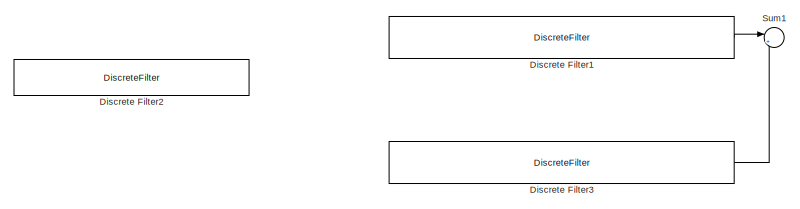
[diagram: root canvas - part 1/3, top right region]
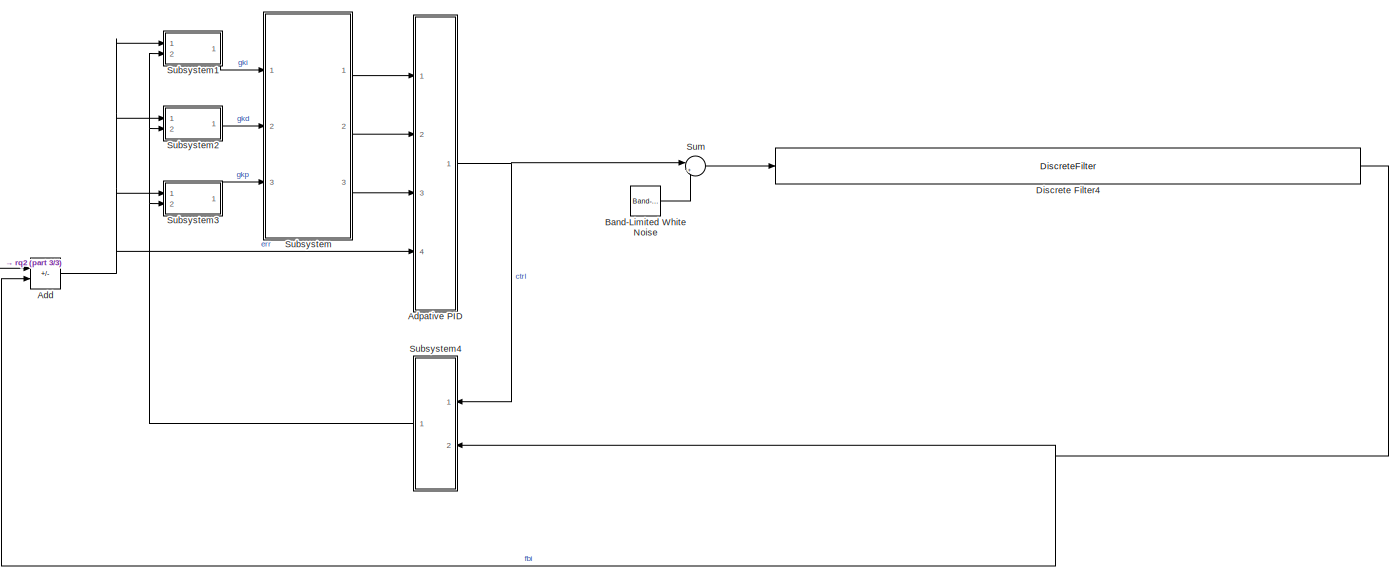
[diagram: root canvas - part 2/3, central region]
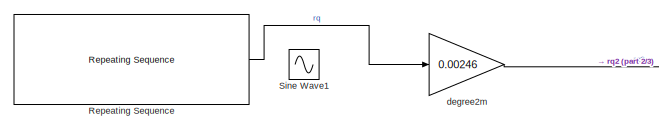
[diagram: root canvas - part 3/3, middle left region]
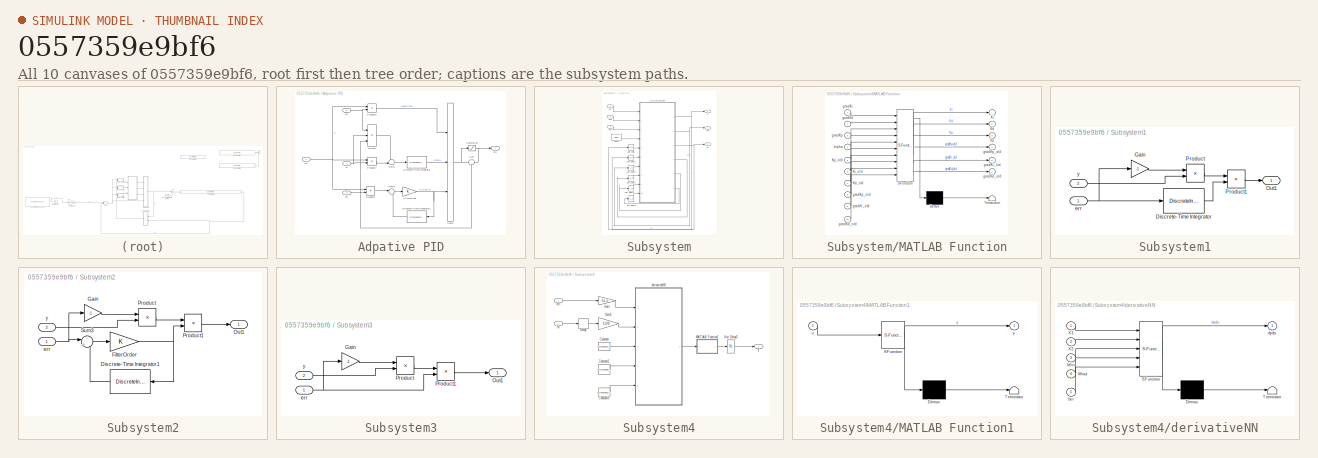
[diagram: thumbnail index - all 10 canvases of the model, root first then tree order]
MODEL slx_0557359e9bf6
KIND model
CONFIG AbsTol = auto
CONFIG EnableMultiTasking = off
CONFIG FixedStep = 1e-4
CONFIG MaxStep = auto
CONFIG MinStep = auto
CONFIG RelTol = 1e-3
CONFIG SampleTimeConstraint = Unconstrained
CONFIG Solver = ode8
CONFIG SolverName = ode8
CONFIG StartTime = 0.0
CONFIG StopTime = 100
BLOCK [Sum] Add
  IconShape = rectangular
  Inputs = +-
  Ports = [2, 1]
BLOCK [SubSystem] Adpative PID
  Ports = [4, 1]
  RequestExecContextInheritance = off
BLOCK [DiscreteIntegrator] Adpative PID/Discrete-Time Integrator
  ICPrevOutput = DiscIntNeverNeededParam
  ICPrevScaledInput = DiscIntNeverNeededParam
  InitialConditionSetting = Auto
  IntegratorMethod = Accumulation: Forward Euler
  Ports = [1, 1]
  SampleTime = -1
  gainval = 0.001
BLOCK [DiscreteIntegrator] Adpative PID/Discrete-Time Integrator1
  ICPrevOutput = DiscIntNeverNeededParam
  ICPrevScaledInput = DiscIntNeverNeededParam
  InitialConditionSetting = Auto
  IntegratorMethod = Accumulation: Forward Euler
  Ports = [1, 1]
  SampleTime = -1
  gainval = 0.001
BLOCK [Product] Adpative PID/Divide
  Inputs = /**
  Ports = [3, 1]
BLOCK [Gain] Adpative PID/FilterOrder
  OutDataTypeStr = Inherit: Same as input
  ParamDataTypeStr = Inherit: Same as input
  SaturateOnIntegerOverflow = on
BLOCK [Product] Adpative PID/Product3
  Ports = [2, 1]
BLOCK [Product] Adpative PID/Product4
  Ports = [2, 1]
BLOCK [Product] Adpative PID/Product5
  Ports = [2, 1]
BLOCK [Saturate] Adpative PID/Saturation
  LowerLimit = -100
  UpperLimit = 100
BLOCK [Sum] Adpative PID/Sum
  Inputs = +|-
  Ports = [2, 1]
BLOCK [Sum] Adpative PID/Sum2
  Inputs = -+|
  Ports = [2, 1]
BLOCK [Sum] Adpative PID/Sum3
  Inputs = |+-
  Ports = [2, 1]
BLOCK [Sum] Adpative PID/Sum4
  IconShape = rectangular
  InputSameDT = on
  Inputs = +++
  OutDataTypeStr = Inherit: Same as first input
  Ports = [3, 1]
  SaturateOnIntegerOverflow = on
BLOCK [Outport] Adpative PID/ctrl
BLOCK [Inport] Adpative PID/err
  Port = 4
BLOCK [Inport] Adpative PID/kd
  Port = 2
BLOCK [Inport] Adpative PID/ki
BLOCK [Inport] Adpative PID/kp
  Port = 3
BLOCK [Reference] Band-Limited White Noise  REF=simulink/Sources/Band-Limited
White Noise
  Ports = [0, 1]
  SourceBlock = simulink/Sources/Band-Limited\nWhite Noise
  SourceProductBaseCode = SL
  SourceType = Band-Limited White Noise.
BLOCK [DiscreteFilter] Discrete Filter1
  Commented = on
  Denominator = [1 -1.831 0.6911 0.1388 0.0006701]
  FilterStructure = Direct form I
  InputPortMap = u0
  Numerator = [0.0009415 -0.001728 0.0006545 0.000132]
  Ports = [1, 1]
  SampleTime = 0.0001
BLOCK [DiscreteFilter] Discrete Filter2
  Commented = on
  Denominator = [1 -0.411 -0.5597 -0.043 0.01373]
  FilterStructure = Direct form I
  InputPortMap = u0
  Numerator = [0 0.001431 -0.0005706 -0.0008603]
  Ports = [1, 1]
  SampleTime = 0.0001
BLOCK [DiscreteFilter] Discrete Filter3
  Commented = on
  Denominator = [1 -1.831 0.6911 0.1388 0.0006701]
  FilterStructure = Direct form I
  InputPortMap = u0
  Ports = [1, 1]
  SampleTime = 0.0001
BLOCK [DiscreteFilter] Discrete Filter4
  Denominator = [1 0.05198+0.01981 -0.7145+0.04908 -0.3374+0.04312]
  FilterStructure = Direct form I
  InputPortMap = u0
  Numerator = [0.008566+0.000603 -0.005772+0.0002658 -0.006323+0.001207 0.003544+0.0005684 -1.532e-05+0.0004015]
  Ports = [1, 1]
  SampleTime = 0.0001
BLOCK [Reference] Repeating Sequence  REF=simulink/Sources/Repeating
Sequence
  Ports = [0, 1]
  SourceBlock = simulink/Sources/Repeating\nSequence
  SourceProductBaseCode = SL
  SourceType = Repeating table
BLOCK [Sin] Sine Wave1
  Amplitude = 2
  Commented = on
  Frequency = 0.5
  Ports = [0, 1]
  SampleTime = 0
BLOCK [SubSystem] Subsystem
  Ports = [3, 3]
  RequestExecContextInheritance = off
BLOCK [Constant] Subsystem/Alpha
  Value = 1000
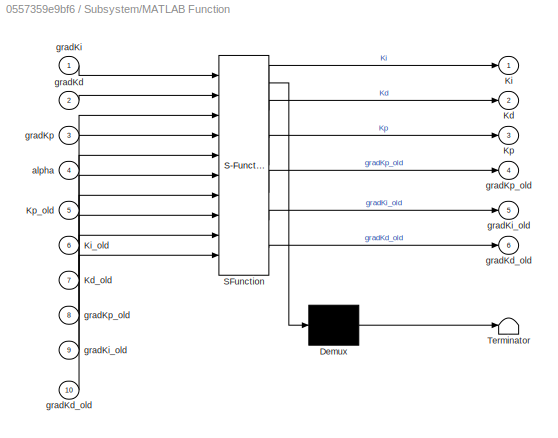
BLOCK [SubSystem] Subsystem/MATLAB Function
  ErrorFcn = Stateflow.Translate.translate
  PermitHierarchicalResolution = ExplicitOnly
  Ports = [10, 6]
  RequestExecContextInheritance = off
  SFBlockType = MATLAB Function
  TreatAsAtomicUnit = on
BLOCK [Demux] Subsystem/MATLAB Function/ Demux 
  Outputs = 1
  Ports = [1, 1]
BLOCK [S-Function] Subsystem/MATLAB Function/ SFunction 
  EnableBusSupport = off
  FunctionName = sf_sfun
  PortCounts = [10 7]
  Ports = [10, 7]
  SFcnIsStateOwnerBlock = off
  SFunctionDeploymentMode = off
  Tag = Stateflow S-Function Controller_Disc2018 2
BLOCK [Terminator] Subsystem/MATLAB Function/ Terminator 
BLOCK [Outport] Subsystem/MATLAB Function/Kd
  Port = 2
BLOCK [Inport] Subsystem/MATLAB Function/Kd_old
  Port = 7
BLOCK [Outport] Subsystem/MATLAB Function/Ki
BLOCK [Inport] Subsystem/MATLAB Function/Ki_old
  Port = 6
BLOCK [Outport] Subsystem/MATLAB Function/Kp
  Port = 3
BLOCK [Inport] Subsystem/MATLAB Function/Kp_old
  Port = 5
BLOCK [Inport] Subsystem/MATLAB Function/alpha
  Port = 4
BLOCK [Inport] Subsystem/MATLAB Function/gradKd
  Port = 2
BLOCK [Outport] Subsystem/MATLAB Function/gradKd_old
  Port = 6
BLOCK [Inport] Subsystem/MATLAB Function/gradKd_old 
  Port = 10
BLOCK [Inport] Subsystem/MATLAB Function/gradKi
BLOCK [Outport] Subsystem/MATLAB Function/gradKi_old
  Port = 5
BLOCK [Inport] Subsystem/MATLAB Function/gradKi_old 
  Port = 9
BLOCK [Inport] Subsystem/MATLAB Function/gradKp
  Port = 3
BLOCK [Outport] Subsystem/MATLAB Function/gradKp_old
  Port = 4
BLOCK [Inport] Subsystem/MATLAB Function/gradKp_old 
  Port = 8
BLOCK [UnitDelay] Subsystem/Unit Delay
  HasFrameUpgradeWarning = on
  InitialCondition = 800
  SampleTime = 1e-3
BLOCK [UnitDelay] Subsystem/Unit Delay1
  HasFrameUpgradeWarning = on
  InitialCondition = 300
  SampleTime = 1e-3
BLOCK [UnitDelay] Subsystem/Unit Delay2
  HasFrameUpgradeWarning = on
  InitialCondition = 4
  SampleTime = 1e-3
BLOCK [UnitDelay] Subsystem/Unit Delay4
  HasFrameUpgradeWarning = on
  SampleTime = 1e-3
BLOCK [UnitDelay] Subsystem/Unit Delay5
  HasFrameUpgradeWarning = on
  SampleTime = 1e-3
BLOCK [UnitDelay] Subsystem/Unit Delay6
  HasFrameUpgradeWarning = on
  SampleTime = 1e-3
BLOCK [Inport] Subsystem/gkd
  Port = 2
BLOCK [Inport] Subsystem/gki
BLOCK [Inport] Subsystem/gkp
  Port = 3
BLOCK [Outport] Subsystem/kd
  Port = 2
BLOCK [Outport] Subsystem/ki
BLOCK [Outport] Subsystem/kp
  Port = 3
BLOCK [SubSystem] Subsystem1
  Ports = [2, 1]
  RequestExecContextInheritance = off
BLOCK [DiscreteIntegrator] Subsystem1/Discrete-Time Integrator
  ICPrevOutput = DiscIntNeverNeededParam
  ICPrevScaledInput = DiscIntNeverNeededParam
  InitialConditionSetting = Auto
  IntegratorMethod = Accumulation: Forward Euler
  Ports = [1, 1]
  SampleTime = -1
  gainval = 0.0001
BLOCK [Gain] Subsystem1/Gain
  Gain = -1
BLOCK [Outport] Subsystem1/Out1
BLOCK [Product] Subsystem1/Product
  Ports = [2, 1]
BLOCK [Product] Subsystem1/Product1
  Ports = [2, 1]
BLOCK [Inport] Subsystem1/err
BLOCK [Inport] Subsystem1/y
  Port = 2
BLOCK [SubSystem] Subsystem2
  Ports = [2, 1]
  RequestExecContextInheritance = off
BLOCK [DiscreteIntegrator] Subsystem2/Discrete-Time Integrator1
  ICPrevOutput = DiscIntNeverNeededParam
  ICPrevScaledInput = DiscIntNeverNeededParam
  InitialConditionSetting = Auto
  IntegratorMethod = Accumulation: Forward Euler
  Ports = [1, 1]
  SampleTime = -1
  gainval = 0.0001
BLOCK [Gain] Subsystem2/FilterOrder
  OutDataTypeStr = Inherit: Same as input
  ParamDataTypeStr = Inherit: Same as input
  SaturateOnIntegerOverflow = on
BLOCK [Gain] Subsystem2/Gain
  Gain = -1
BLOCK [Outport] Subsystem2/Out1
BLOCK [Product] Subsystem2/Product
  Ports = [2, 1]
BLOCK [Product] Subsystem2/Product1
  Ports = [2, 1]
BLOCK [Sum] Subsystem2/Sum3
  Inputs = |+-
  Ports = [2, 1]
BLOCK [Inport] Subsystem2/err
BLOCK [Inport] Subsystem2/y
  Port = 2
BLOCK [SubSystem] Subsystem3
  Ports = [2, 1]
  RequestExecContextInheritance = off
BLOCK [Gain] Subsystem3/Gain
  Gain = -1
BLOCK [Outport] Subsystem3/Out1
BLOCK [Product] Subsystem3/Product
  Ports = [2, 1]
BLOCK [Product] Subsystem3/Product1
  Ports = [2, 1]
BLOCK [Inport] Subsystem3/err
BLOCK [Inport] Subsystem3/y
  Port = 2
BLOCK [SubSystem] Subsystem4
  Ports = [2, 1]
  RequestExecContextInheritance = off
BLOCK [Constant] Subsystem4/Constant
  Value = [0.811661315567532	0.523339604043497\n0.781547366351639	0.164018692936968\n0.146098503423341	0.879428705628321\n0.266102211582170	0.304501614309624\n0.397284814093776	0.765244619952808\n0.516628753495178	0.186405621841320\n0.0862525926601981	0.717804970916536\n0.103414091455425	0.420647287190983\n0.506698658207659	0.609237422549281\n0.269175608561842	0.124471251020265\n0.0151134208657587	0.418749009267761\n0...<+326ch>
BLOCK [Constant] Subsystem4/Constant2
  Value = [0.610759087177597	0.366179666335005	-0.0584030572951834	0.209075859992505	0.584389586358981	0.349871470561781	-0.204405272265807	-0.116182445469499	0.0642557952818070	-0.132902026263845	0.805831183296775	-0.399691016290584	0.259161704540015	0.179474388613012	-0.0314937390524749	0.704808744971737	0.263155510958995	0.213381634610559	0.587918070221544	0.290284501669435]
BLOCK [Constant] Subsystem4/Constant3
  Value = [0.818045624381218\n0.102878023447675\n0.737296135799067\n0.382188425410472\n0.977505309905872\n0.149360203196300\n0.641439600546557\n0.443497484934195\n0.680421925309724\n0.859879825832941\n-0.318689482669828\n0.255207188653107\n0.313389787503390\n0.721063295306122\n0.439116073494923\n-0.219038629148731\n0.491813043211072\n-0.0750940652226708\n-0.120979967962816\n0.00273892356427859]
BLOCK [Delay] Subsystem4/Delay
  DelayLength = 1
  InputPortMap = u0
  Ports = [1, 1]
  SampleTime = 1e-3
BLOCK [Gain] Subsystem4/Gain
  Gain = 1e-5
BLOCK [Gain] Subsystem4/Gain1
  Gain = 1/20
BLOCK [SubSystem] Subsystem4/MATLAB Function1
  ErrorFcn = Stateflow.Translate.translate
  PermitHierarchicalResolution = ExplicitOnly
  Ports = [1, 1]
  RequestExecContextInheritance = off
  SFBlockType = MATLAB Function
  TreatAsAtomicUnit = on
BLOCK [Demux] Subsystem4/MATLAB Function1/ Demux 
  Outputs = 1
  Ports = [1, 1]
BLOCK [S-Function] Subsystem4/MATLAB Function1/ SFunction 
  EnableBusSupport = off
  FunctionName = sf_sfun
  PortCounts = [1 2]
  Ports = [1, 2]
  SFcnIsStateOwnerBlock = off
  SFunctionDeploymentMode = off
  Tag = Stateflow S-Function Controller_Disc2018 3
BLOCK [Terminator] Subsystem4/MATLAB Function1/ Terminator 
BLOCK [Inport] Subsystem4/MATLAB Function1/u
BLOCK [Outport] Subsystem4/MATLAB Function1/y
BLOCK [UnitDelay] Subsystem4/Unit Delay3
  HasFrameUpgradeWarning = on
  SampleTime = 1e-3
BLOCK [Inport] Subsystem4/ctrl
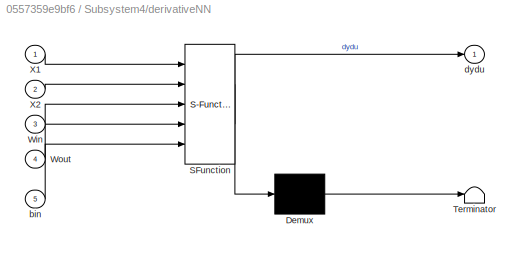
BLOCK [SubSystem] Subsystem4/derivativeNN
  ErrorFcn = Stateflow.Translate.translate
  PermitHierarchicalResolution = ExplicitOnly
  Ports = [5, 1]
  RequestExecContextInheritance = off
  SFBlockType = MATLAB Function
  TreatAsAtomicUnit = on
BLOCK [Demux] Subsystem4/derivativeNN/ Demux 
  Outputs = 1
  Ports = [1, 1]
BLOCK [S-Function] Subsystem4/derivativeNN/ SFunction 
  EnableBusSupport = off
  FunctionName = sf_sfun
  PortCounts = [5 2]
  Ports = [5, 2]
  SFcnIsStateOwnerBlock = off
  SFunctionDeploymentMode = off
  Tag = Stateflow S-Function Controller_Disc2018 1
BLOCK [Terminator] Subsystem4/derivativeNN/ Terminator 
BLOCK [Inport] Subsystem4/derivativeNN/Win
  Port = 3
BLOCK [Inport] Subsystem4/derivativeNN/Wout
  Port = 4
BLOCK [Inport] Subsystem4/derivativeNN/X1
BLOCK [Inport] Subsystem4/derivativeNN/X2
  Port = 2
BLOCK [Inport] Subsystem4/derivativeNN/bin
  Port = 5
BLOCK [Outport] Subsystem4/derivativeNN/dydu
BLOCK [Inport] Subsystem4/fb
  Port = 2
BLOCK [Outport] Subsystem4/y
BLOCK [Sum] Sum
  Inputs = |++
  Ports = [2, 1]
BLOCK [Sum] Sum1
  Commented = on
  Inputs = |++
  Ports = [2, 1]
BLOCK [Gain] degree2m
  Gain = 0.00246
NET Add:1 -> Adpative PID:4, Subsystem1:1, Subsystem2:1, Subsystem3:1
LINE Adpative PID/Discrete-Time Integrator1:1 -> Adpative PID/Sum3:2
LINE Adpative PID/Discrete-Time Integrator:1 -> Adpative PID/Sum4:2
LINE Adpative PID/Divide:1 -> Adpative PID/Sum2:1
NET Adpative PID/FilterOrder:1 -> Adpative PID/Discrete-Time Integrator1:1, Adpative PID/Sum4:3
LINE Adpative PID/Product3:1 -> Adpative PID/Sum3:1
LINE Adpative PID/Product4:1 -> Adpative PID/Sum2:2
LINE Adpative PID/Product5:1 -> Adpative PID/Sum4:1
NET Adpative PID/Saturation:1 -> Adpative PID/Sum:2, Adpative PID/ctrl:1
LINE Adpative PID/Sum2:1 -> Adpative PID/Discrete-Time Integrator:1
LINE Adpative PID/Sum3:1 -> Adpative PID/FilterOrder:1
NET Adpative PID/Sum4:1 -> Adpative PID/Saturation:1, Adpative PID/Sum:1
LINE Adpative PID/Sum:1 -> Adpative PID/Divide:3
NET Adpative PID/err:1 -> Adpative PID/Product3:1, Adpative PID/Product4:1, Adpative PID/Product5:1
LINE Adpative PID/kd:1 -> Adpative PID/Product3:2
NET Adpative PID/ki:1 -> Adpative PID/Divide:2, Adpative PID/Product4:2
NET Adpative PID/kp:1 -> Adpative PID/Divide:1, Adpative PID/Product5:2
NET Adpative PID:1 -> Subsystem4:1, Sum:1
LINE Band-Limited White Noise:1 -> Sum:2
LINE Discrete Filter1:1 -> Sum1:1
LINE Discrete Filter3:1 -> Sum1:2
NET Discrete Filter4:1 -> Add:2, Subsystem4:2
LINE Repeating Sequence:1 -> degree2m:1
LINE Subsystem/Alpha:1 -> Subsystem/MATLAB Function:4
NET Subsystem/MATLAB Function:1 -> Subsystem/Unit Delay1:1, Subsystem/ki:1
NET Subsystem/MATLAB Function:2 -> Subsystem/Unit Delay2:1, Subsystem/kd:1
NET Subsystem/MATLAB Function:3 -> Subsystem/Unit Delay:1, Subsystem/kp:1
LINE Subsystem/MATLAB Function:4 -> Subsystem/Unit Delay4:1
LINE Subsystem/MATLAB Function:5 -> Subsystem/Unit Delay5:1
LINE Subsystem/MATLAB Function:6 -> Subsystem/Unit Delay6:1
LINE Subsystem/Unit Delay1:1 -> Subsystem/MATLAB Function:6
LINE Subsystem/Unit Delay2:1 -> Subsystem/MATLAB Function:7
LINE Subsystem/Unit Delay4:1 -> Subsystem/MATLAB Function:8
LINE Subsystem/Unit Delay5:1 -> Subsystem/MATLAB Function:9
LINE Subsystem/Unit Delay6:1 -> Subsystem/MATLAB Function:10
LINE Subsystem/Unit Delay:1 -> Subsystem/MATLAB Function:5
LINE Subsystem/gkd:1 -> Subsystem/MATLAB Function:2
LINE Subsystem/gki:1 -> Subsystem/MATLAB Function:1
LINE Subsystem/gkp:1 -> Subsystem/MATLAB Function:3
LINE Subsystem1/Discrete-Time Integrator:1 -> Subsystem1/Product1:2
LINE Subsystem1/Gain:1 -> Subsystem1/Product:1
LINE Subsystem1/Product1:1 -> Subsystem1/Out1:1
LINE Subsystem1/Product:1 -> Subsystem1/Product1:1
NET Subsystem1/err:1 -> Subsystem1/Discrete-Time Integrator:1, Subsystem1/Gain:1
LINE Subsystem1/y:1 -> Subsystem1/Product:2
LINE Subsystem1:1 -> Subsystem:1
LINE Subsystem2/Discrete-Time Integrator1:1 -> Subsystem2/Sum3:2
NET Subsystem2/FilterOrder:1 -> Subsystem2/Discrete-Time Integrator1:1, Subsystem2/Product1:2
LINE Subsystem2/Gain:1 -> Subsystem2/Product:1
LINE Subsystem2/Product1:1 -> Subsystem2/Out1:1
LINE Subsystem2/Product:1 -> Subsystem2/Product1:1
LINE Subsystem2/Sum3:1 -> Subsystem2/FilterOrder:1
NET Subsystem2/err:1 -> Subsystem2/Gain:1, Subsystem2/Sum3:1
LINE Subsystem2/y:1 -> Subsystem2/Product:2
LINE Subsystem2:1 -> Subsystem:2
LINE Subsystem3/Gain:1 -> Subsystem3/Product:1
LINE Subsystem3/Product1:1 -> Subsystem3/Out1:1
LINE Subsystem3/Product:1 -> Subsystem3/Product1:1
NET Subsystem3/err:1 -> Subsystem3/Gain:1, Subsystem3/Product1:2
LINE Subsystem3/y:1 -> Subsystem3/Product:2
LINE Subsystem3:1 -> Subsystem:3
LINE Subsystem4/Constant2:1 -> Subsystem4/derivativeNN:4
LINE Subsystem4/Constant3:1 -> Subsystem4/derivativeNN:5
LINE Subsystem4/Constant:1 -> Subsystem4/derivativeNN:3
LINE Subsystem4/Delay:1 -> Subsystem4/Gain1:1
LINE Subsystem4/Gain1:1 -> Subsystem4/derivativeNN:2
LINE Subsystem4/Gain:1 -> Subsystem4/derivativeNN:1
LINE Subsystem4/MATLAB Function1:1 -> Subsystem4/Unit Delay3:1
LINE Subsystem4/Unit Delay3:1 -> Subsystem4/y:1
LINE Subsystem4/ctrl:1 -> Subsystem4/Gain:1
LINE Subsystem4/derivativeNN:1 -> Subsystem4/MATLAB Function1:1
LINE Subsystem4/fb:1 -> Subsystem4/Delay:1
NET Subsystem4:1 -> Subsystem1:2, Subsystem2:2, Subsystem3:2
LINE Subsystem:1 -> Adpative PID:1
LINE Subsystem:2 -> Adpative PID:2
LINE Subsystem:3 -> Adpative PID:3
LINE Sum:1 -> Discrete Filter4:1
LINE degree2m:1 -> Add:1
note: NET lines group one-source signal fan-out (src -> all destinations, sorted); 1:1 wires keep LINE
CHART Subsystem4/derivativeNN states=1 transitions=1
  STATE_LABEL 'eML_blk_kernel()'
  STATE_LABEL "SCRIPT:\n\nfunction dydu  = ffnetforcast(X1,X2, Win, Wout, bin)\nX = [X1;X2];\nnetin = Win*X + bin;\ndydu_pre = Win'*(Wout'.*hprime(netin));\ndydu = dydu_pre(1,1);\nfunction y = hprime(x)\n    y = (1-tanh(x).^2);\nend\nend"
CHART Subsystem/MATLAB Function states=1 transitions=1
  STATE_LABEL 'eML_blk_kernel()'
  STATE_LABEL 'SCRIPT:\nfunction [Ki,Kd,Kp,gradKp_old,gradKi_old,gradKd_old] = fcn(gradKi,gradKd,gradKp, alpha, Kp_old, Ki_old, Kd_old,gradKp_old,gradKi_old,gradKd_old)\n\n\n\n% v = beta*(oldGrad) + (1-beta)*grad;\n% oldGrad = v;\n% param = param - alpha*v;\nbeta = 0.8;\nVkp = beta*gradKp_old + (1-beta)*gradKp;\nVki = beta*gradKi_old + (1-beta)*gradKi;\nVkd = beta*gradKd_old + (1-beta)*gradKd;\n\nKp = Kp_old - alpha*Vkp;\nKi ...<+107ch>'
CHART Subsystem4/MATLAB Function1 states=1 transitions=1
  STATE_LABEL 'eML_blk_kernel()'
  STATE_LABEL 'SCRIPT:\nfunction y = fcn(u)\nif u == 0\n    y = 0.0001;\nelse\ny = u;\nend'
